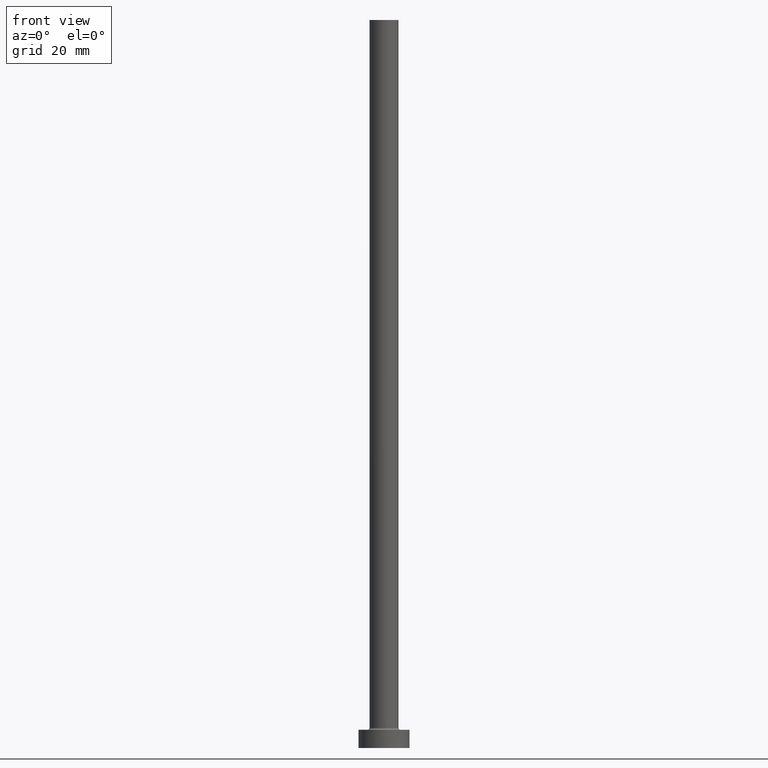
[diagram: clean part render]
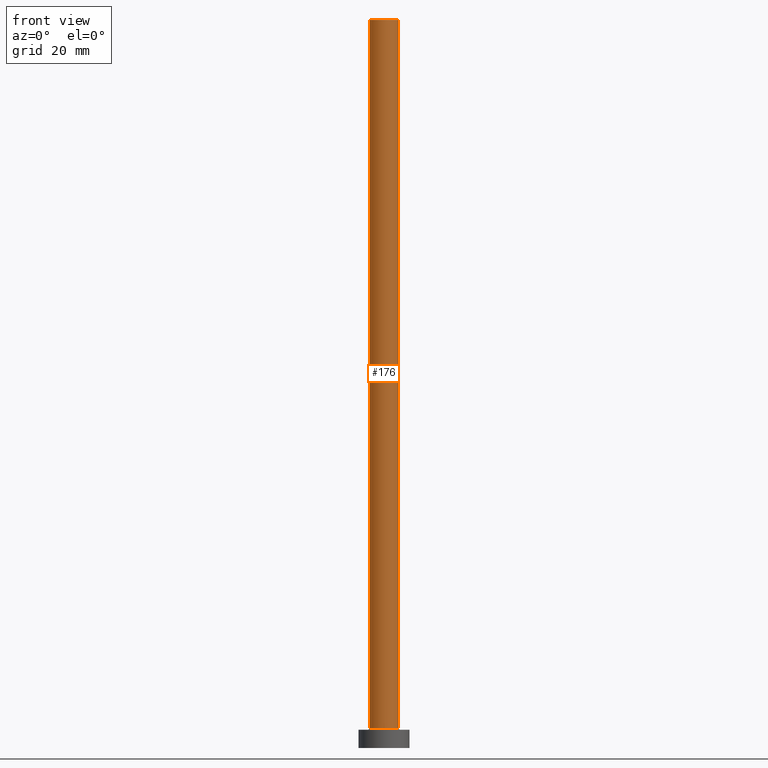
[diagram: same view with one face highlighted and labeled with its STEP entity id]
A machine part, front view. The second image highlights one B-rep face of the part: STEP entity #176.
In plain terms, the highlighted cylindrical surface (edge-blend (fillet) strip) has radius 4 mm, axis along (-0, -0, -1).
Its self-contained STEP definition (entity closure, byte-faithful):
#5 = VERTEX_POINT ( 'NONE', #333 ) ;
#7 = VECTOR ( 'NONE', #278, 1000.000000000000000 ) ;
#31 = EDGE_LOOP ( 'NONE', ( #146, #247, #395, #277 ) ) ;
#43 = AXIS2_PLACEMENT_3D ( 'NONE', #404, #362, #294 ) ;
#57 = CYLINDRICAL_SURFACE ( 'NONE', #337, 4.000000000000000000 ) ;
#110 = AXIS2_PLACEMENT_3D ( 'NONE', #455, #133, #420 ) ;
#126 = CARTESIAN_POINT ( 'NONE',  ( 0.000000000000000000, 0.000000000000000000, 200.0000000000000000 ) ) ;
#128 = VECTOR ( 'NONE', #180, 1000.000000000000000 ) ;
#133 = DIRECTION ( 'NONE',  ( 0.000000000000000000, 0.000000000000000000, 1.000000000000000000 ) ) ;
#146 = ORIENTED_EDGE ( 'NONE', *, *, #319, .F. ) ;
#171 = VERTEX_POINT ( 'NONE', #227 ) ;
#176 = ADVANCED_FACE ( 'NONE', ( #302 ), #57, .T. ) ;
#180 = DIRECTION ( 'NONE',  ( -0.000000000000000000, -0.000000000000000000, -1.000000000000000000 ) ) ;
#215 = EDGE_CURVE ( 'NONE', #5, #238, #328, .T. ) ;
#218 = CARTESIAN_POINT ( 'NONE',  ( -4.000000000000000000, 0.000000000000000000, 200.0000000000000000 ) ) ;
#227 = CARTESIAN_POINT ( 'NONE',  ( 4.000000000000000000, 4.898587196589412829E-16, 200.0000000000000000 ) ) ;
#238 = VERTEX_POINT ( 'NONE', #241 ) ;
#241 = CARTESIAN_POINT ( 'NONE',  ( 4.000000000000000000, 4.898587196589412829E-16, 5.500000000000005329 ) ) ;
#245 = LINE ( 'NONE', #218, #128 ) ;
#246 = CIRCLE ( 'NONE', #43, 4.000000000000000000 ) ;
#247 = ORIENTED_EDGE ( 'NONE', *, *, #401, .F. ) ;
#266 = DIRECTION ( 'NONE',  ( -0.000000000000000000, -0.000000000000000000, -1.000000000000000000 ) ) ;
#277 = ORIENTED_EDGE ( 'NONE', *, *, #215, .T. ) ;
#278 = DIRECTION ( 'NONE',  ( -0.000000000000000000, -0.000000000000000000, -1.000000000000000000 ) ) ;
#294 = DIRECTION ( 'NONE',  ( 1.000000000000000000, 0.000000000000000000, 0.000000000000000000 ) ) ;
#302 = FACE_OUTER_BOUND ( 'NONE', #31, .T. ) ;
#319 = EDGE_CURVE ( 'NONE', #171, #238, #458, .T. ) ;
#328 = CIRCLE ( 'NONE', #110, 4.000000000000000000 ) ;
#333 = CARTESIAN_POINT ( 'NONE',  ( -4.000000000000000000, 0.000000000000000000, 5.500000000000005329 ) ) ;
#337 = AXIS2_PLACEMENT_3D ( 'NONE', #126, #266, #411 ) ;
#357 = CARTESIAN_POINT ( 'NONE',  ( -4.000000000000000000, 0.000000000000000000, 200.0000000000000000 ) ) ;
#362 = DIRECTION ( 'NONE',  ( 0.000000000000000000, 0.000000000000000000, 1.000000000000000000 ) ) ;
#385 = CARTESIAN_POINT ( 'NONE',  ( 4.000000000000000000, 4.898587196589412829E-16, 200.0000000000000000 ) ) ;
#395 = ORIENTED_EDGE ( 'NONE', *, *, #441, .T. ) ;
#401 = EDGE_CURVE ( 'NONE', #403, #171, #246, .T. ) ;
#403 = VERTEX_POINT ( 'NONE', #357 ) ;
#404 = CARTESIAN_POINT ( 'NONE',  ( 0.000000000000000000, 0.000000000000000000, 200.0000000000000000 ) ) ;
#411 = DIRECTION ( 'NONE',  ( -1.000000000000000000, 0.000000000000000000, 0.000000000000000000 ) ) ;
#420 = DIRECTION ( 'NONE',  ( 1.000000000000000000, 0.000000000000000000, 0.000000000000000000 ) ) ;
#441 = EDGE_CURVE ( 'NONE', #403, #5, #245, .T. ) ;
#455 = CARTESIAN_POINT ( 'NONE',  ( 0.000000000000000000, 0.000000000000000000, 5.500000000000005329 ) ) ;
#458 = LINE ( 'NONE', #385, #7 ) ;